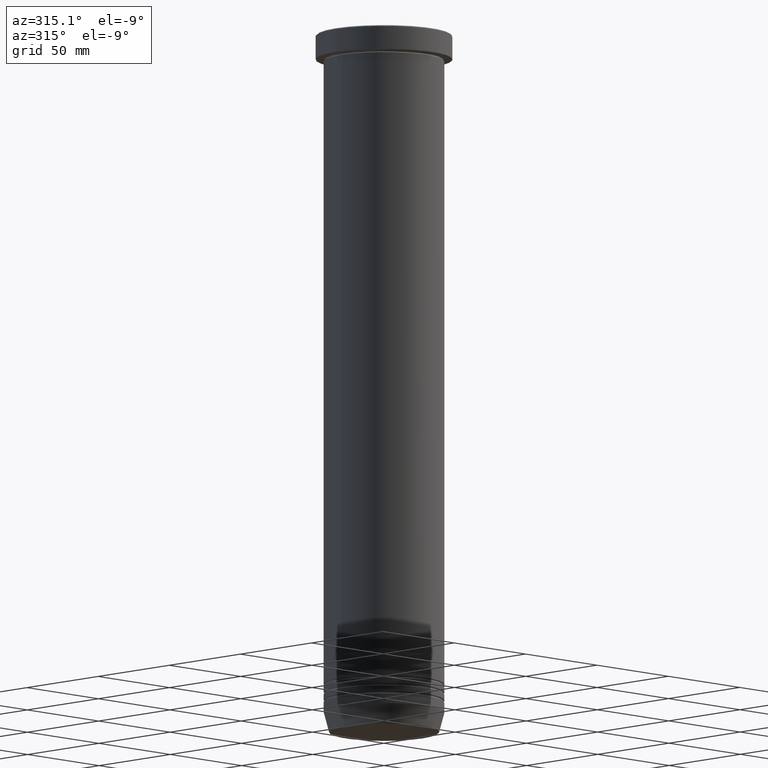
[diagram: clean part render]
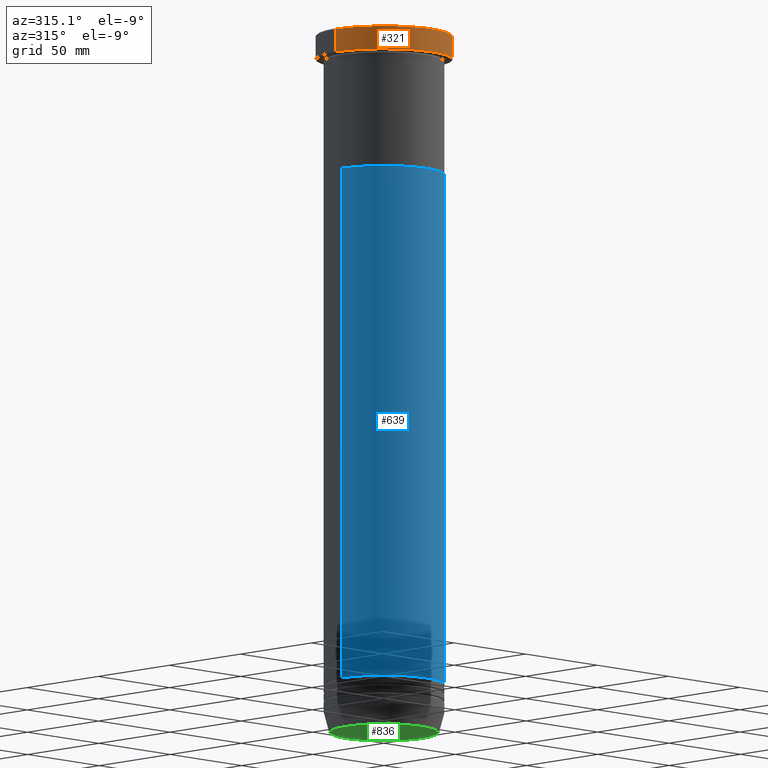
[diagram: same view with three faces highlighted in distinct colors, each labeled with its STEP entity id]
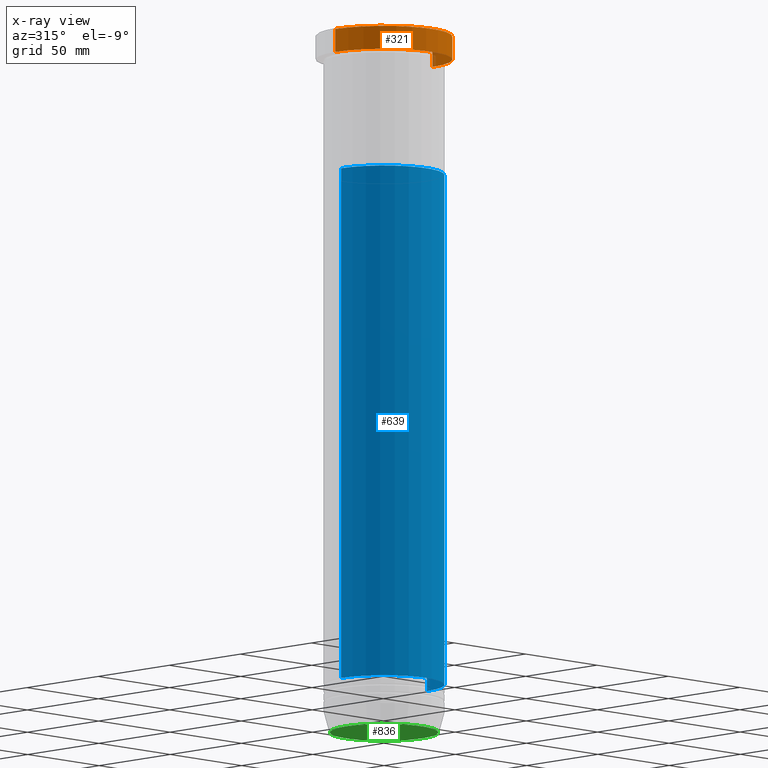
[diagram: x-ray of the same camera — body ghosted, the three highlighted faces saturated]
A machine part, auxiliary view with three faces highlighted in distinct colors.
The next image is the same camera in x-ray (body ghosted, the three faces saturated) — at least one of them is partly hidden behind the body in this view.
Their STEP definitions:

[orange] entity #321 — the highlighted cylindrical surface (partial cylindrical patch) has radius 34 mm, axis along (-0, -0, 1).
#53 = DIRECTION ( 'NONE',  ( -0.000000000000000000, -0.000000000000000000, 1.000000000000000000 ) ) ;
#55 = EDGE_LOOP ( 'NONE', ( #128, #748, #1059, #606 ) ) ;
#58 = CARTESIAN_POINT ( 'NONE',  ( -34.00000000000000000, 4.163799117101000559E-15, 0.000000000000000000 ) ) ;
#69 = CARTESIAN_POINT ( 'NONE',  ( 34.00000000000000000, 0.000000000000000000, -11.99999999999999645 ) ) ;
#106 = EDGE_CURVE ( 'NONE', #213, #957, #737, .T. ) ;
#109 = CARTESIAN_POINT ( 'NONE',  ( 0.000000000000000000, 0.000000000000000000, -11.99999999999999645 ) ) ;
#128 = ORIENTED_EDGE ( 'NONE', *, *, #431, .F. ) ;
#137 = CIRCLE ( 'NONE', #720, 34.00000000000000000 ) ;
#200 = DIRECTION ( 'NONE',  ( -0.000000000000000000, -0.000000000000000000, 1.000000000000000000 ) ) ;
#208 = VERTEX_POINT ( 'NONE', #787 ) ;
#213 = VERTEX_POINT ( 'NONE', #791 ) ;
#248 = DIRECTION ( 'NONE',  ( 1.000000000000000000, 0.000000000000000000, 0.000000000000000000 ) ) ;
#249 = CARTESIAN_POINT ( 'NONE',  ( -34.00000000000000000, 4.163799117101000559E-15, -0.4999999999999935052 ) ) ;
#275 = CYLINDRICAL_SURFACE ( 'NONE', #921, 34.00000000000000000 ) ;
#321 = ADVANCED_FACE ( 'NONE', ( #594 ), #275, .T. ) ;
#424 = EDGE_CURVE ( 'NONE', #957, #208, #685, .T. ) ;
#431 = EDGE_CURVE ( 'NONE', #213, #988, #796, .T. ) ;
#519 = CARTESIAN_POINT ( 'NONE',  ( 34.00000000000000000, 0.000000000000000000, 0.000000000000000000 ) ) ;
#545 = AXIS2_PLACEMENT_3D ( 'NONE', #109, #850, #1024 ) ;
#568 = CARTESIAN_POINT ( 'NONE',  ( 0.000000000000000000, 0.000000000000000000, -0.4999999999999935052 ) ) ;
#571 = EDGE_CURVE ( 'NONE', #208, #988, #137, .T. ) ;
#589 = CARTESIAN_POINT ( 'NONE',  ( 0.000000000000000000, 0.000000000000000000, 0.000000000000000000 ) ) ;
#594 = FACE_OUTER_BOUND ( 'NONE', #55, .T. ) ;
#606 = ORIENTED_EDGE ( 'NONE', *, *, #571, .T. ) ;
#685 = LINE ( 'NONE', #519, #718 ) ;
#718 = VECTOR ( 'NONE', #53, 1000.000000000000000 ) ;
#720 = AXIS2_PLACEMENT_3D ( 'NONE', #568, #984, #248 ) ;
#737 = CIRCLE ( 'NONE', #545, 34.00000000000000000 ) ;
#748 = ORIENTED_EDGE ( 'NONE', *, *, #106, .T. ) ;
#769 = DIRECTION ( 'NONE',  ( 1.000000000000000000, 0.000000000000000000, 0.000000000000000000 ) ) ;
#787 = CARTESIAN_POINT ( 'NONE',  ( 34.00000000000000000, 0.000000000000000000, -0.4999999999999935052 ) ) ;
#791 = CARTESIAN_POINT ( 'NONE',  ( -34.00000000000000000, 4.163799117101000559E-15, -11.99999999999999645 ) ) ;
#796 = LINE ( 'NONE', #58, #846 ) ;
#846 = VECTOR ( 'NONE', #853, 1000.000000000000000 ) ;
#850 = DIRECTION ( 'NONE',  ( -0.000000000000000000, -0.000000000000000000, 1.000000000000000000 ) ) ;
#853 = DIRECTION ( 'NONE',  ( -0.000000000000000000, -0.000000000000000000, 1.000000000000000000 ) ) ;
#921 = AXIS2_PLACEMENT_3D ( 'NONE', #589, #200, #769 ) ;
#957 = VERTEX_POINT ( 'NONE', #69 ) ;
#984 = DIRECTION ( 'NONE',  ( 0.000000000000000000, 0.000000000000000000, -1.000000000000000000 ) ) ;
#988 = VERTEX_POINT ( 'NONE', #249 ) ;
#1024 = DIRECTION ( 'NONE',  ( 1.000000000000000000, 0.000000000000000000, 0.000000000000000000 ) ) ;
#1059 = ORIENTED_EDGE ( 'NONE', *, *, #424, .T. ) ;

[blue] entity #639 — the highlighted cylindrical surface (partial cylindrical patch) has radius 30 mm, axis along (-0, -0, 1).
#2 = DIRECTION ( 'NONE',  ( -0.000000000000000000, -0.000000000000000000, 1.000000000000000000 ) ) ;
#15 = EDGE_CURVE ( 'NONE', #427, #441, #369, .T. ) ;
#70 = ORIENTED_EDGE ( 'NONE', *, *, #743, .F. ) ;
#124 = EDGE_CURVE ( 'NONE', #441, #379, #694, .T. ) ;
#188 = LINE ( 'NONE', #1002, #884 ) ;
#216 = CARTESIAN_POINT ( 'NONE',  ( 29.99999999999999289, 0.000000000000000000, -326.0000000000000568 ) ) ;
#223 = AXIS2_PLACEMENT_3D ( 'NONE', #587, #575, #927 ) ;
#243 = DIRECTION ( 'NONE',  ( -0.000000000000000000, -0.000000000000000000, 1.000000000000000000 ) ) ;
#260 = DIRECTION ( 'NONE',  ( -0.000000000000000000, -0.000000000000000000, 1.000000000000000000 ) ) ;
#295 = EDGE_LOOP ( 'NONE', ( #70, #889, #343, #981 ) ) ;
#304 = DIRECTION ( 'NONE',  ( -0.000000000000000000, -0.000000000000000000, 1.000000000000000000 ) ) ;
#343 = ORIENTED_EDGE ( 'NONE', *, *, #124, .T. ) ;
#369 = CIRCLE ( 'NONE', #974, 29.99999999999999289 ) ;
#375 = CARTESIAN_POINT ( 'NONE',  ( -29.99999999999999289, 3.673940397442059178E-15, -326.0000000000000568 ) ) ;
#379 = VERTEX_POINT ( 'NONE', #452 ) ;
#402 = VERTEX_POINT ( 'NONE', #709 ) ;
#427 = VERTEX_POINT ( 'NONE', #375 ) ;
#441 = VERTEX_POINT ( 'NONE', #216 ) ;
#452 = CARTESIAN_POINT ( 'NONE',  ( 30.00000000000000000, 0.000000000000000000, -70.00000000000000000 ) ) ;
#478 = DIRECTION ( 'NONE',  ( 1.000000000000000000, 0.000000000000000000, 0.000000000000000000 ) ) ;
#526 = CIRCLE ( 'NONE', #953, 30.00000000000000000 ) ;
#537 = EDGE_CURVE ( 'NONE', #402, #379, #526, .T. ) ;
#575 = DIRECTION ( 'NONE',  ( -0.000000000000000000, -0.000000000000000000, 1.000000000000000000 ) ) ;
#584 = CYLINDRICAL_SURFACE ( 'NONE', #223, 29.99999999999999645 ) ;
#587 = CARTESIAN_POINT ( 'NONE',  ( 0.000000000000000000, 0.000000000000000000, 0.000000000000000000 ) ) ;
#639 = ADVANCED_FACE ( 'NONE', ( #754 ), #584, .T. ) ;
#677 = DIRECTION ( 'NONE',  ( 1.000000000000000000, 0.000000000000000000, 0.000000000000000000 ) ) ;
#694 = LINE ( 'NONE', #1038, #880 ) ;
#709 = CARTESIAN_POINT ( 'NONE',  ( -30.00000000000000355, 3.673940397442059967E-15, -70.00000000000000000 ) ) ;
#743 = EDGE_CURVE ( 'NONE', #427, #402, #188, .T. ) ;
#754 = FACE_OUTER_BOUND ( 'NONE', #295, .T. ) ;
#800 = CARTESIAN_POINT ( 'NONE',  ( 0.000000000000000000, 0.000000000000000000, -326.0000000000000568 ) ) ;
#819 = CARTESIAN_POINT ( 'NONE',  ( 0.000000000000000000, 0.000000000000000000, -70.00000000000000000 ) ) ;
#880 = VECTOR ( 'NONE', #304, 1000.000000000000000 ) ;
#884 = VECTOR ( 'NONE', #260, 1000.000000000000000 ) ;
#889 = ORIENTED_EDGE ( 'NONE', *, *, #15, .T. ) ;
#927 = DIRECTION ( 'NONE',  ( 1.000000000000000000, 0.000000000000000000, 0.000000000000000000 ) ) ;
#953 = AXIS2_PLACEMENT_3D ( 'NONE', #819, #243, #478 ) ;
#974 = AXIS2_PLACEMENT_3D ( 'NONE', #800, #2, #677 ) ;
#981 = ORIENTED_EDGE ( 'NONE', *, *, #537, .F. ) ;
#1002 = CARTESIAN_POINT ( 'NONE',  ( -29.99999999999999645, 3.673940397442059178E-15, 0.000000000000000000 ) ) ;
#1038 = CARTESIAN_POINT ( 'NONE',  ( 29.99999999999999645, 0.000000000000000000, 0.000000000000000000 ) ) ;

[green] entity #836 — the highlighted planar face has unit normal (0, -0, 1).
#52 = DIRECTION ( 'NONE',  ( 1.000000000000000000, 0.000000000000000000, 0.000000000000000000 ) ) ;
#111 = DIRECTION ( 'NONE',  ( 1.000000000000000000, 0.000000000000000000, 0.000000000000000000 ) ) ;
#116 = AXIS2_PLACEMENT_3D ( 'NONE', #1047, #693, #293 ) ;
#132 = DIRECTION ( 'NONE',  ( 0.000000000000000000, -0.000000000000000000, 1.000000000000000000 ) ) ;
#148 = CARTESIAN_POINT ( 'NONE',  ( 26.93684458169928320, 0.000000000000000000, -350.0000000000000568 ) ) ;
#181 = CARTESIAN_POINT ( 'NONE',  ( 0.000000000000000000, 0.000000000000000000, -350.0000000000000568 ) ) ;
#218 = ORIENTED_EDGE ( 'NONE', *, *, #629, .T. ) ;
#263 = ORIENTED_EDGE ( 'NONE', *, *, #358, .T. ) ;
#292 = VERTEX_POINT ( 'NONE', #905 ) ;
#293 = DIRECTION ( 'NONE',  ( 1.000000000000000000, 0.000000000000000000, 0.000000000000000000 ) ) ;
#358 = EDGE_CURVE ( 'NONE', #394, #292, #971, .T. ) ;
#394 = VERTEX_POINT ( 'NONE', #148 ) ;
#430 = DIRECTION ( 'NONE',  ( 0.000000000000000000, 0.000000000000000000, -1.000000000000000000 ) ) ;
#442 = CARTESIAN_POINT ( 'NONE',  ( 0.000000000000000000, 3.673940397442060124E-14, -350.0000000000000568 ) ) ;
#527 = PLANE ( 'NONE',  #922 ) ;
#581 = AXIS2_PLACEMENT_3D ( 'NONE', #181, #430, #111 ) ;
#621 = FACE_OUTER_BOUND ( 'NONE', #627, .T. ) ;
#627 = EDGE_LOOP ( 'NONE', ( #263, #218 ) ) ;
#629 = EDGE_CURVE ( 'NONE', #292, #394, #668, .T. ) ;
#668 = CIRCLE ( 'NONE', #581, 26.93684458169928320 ) ;
#693 = DIRECTION ( 'NONE',  ( 0.000000000000000000, 0.000000000000000000, -1.000000000000000000 ) ) ;
#836 = ADVANCED_FACE ( 'NONE', ( #621 ), #527, .F. ) ;
#905 = CARTESIAN_POINT ( 'NONE',  ( -26.93684458169928320, 3.328384998895242257E-15, -350.0000000000000568 ) ) ;
#922 = AXIS2_PLACEMENT_3D ( 'NONE', #442, #132, #52 ) ;
#971 = CIRCLE ( 'NONE', #116, 26.93684458169928320 ) ;
#1047 = CARTESIAN_POINT ( 'NONE',  ( 0.000000000000000000, 0.000000000000000000, -350.0000000000000568 ) ) ;